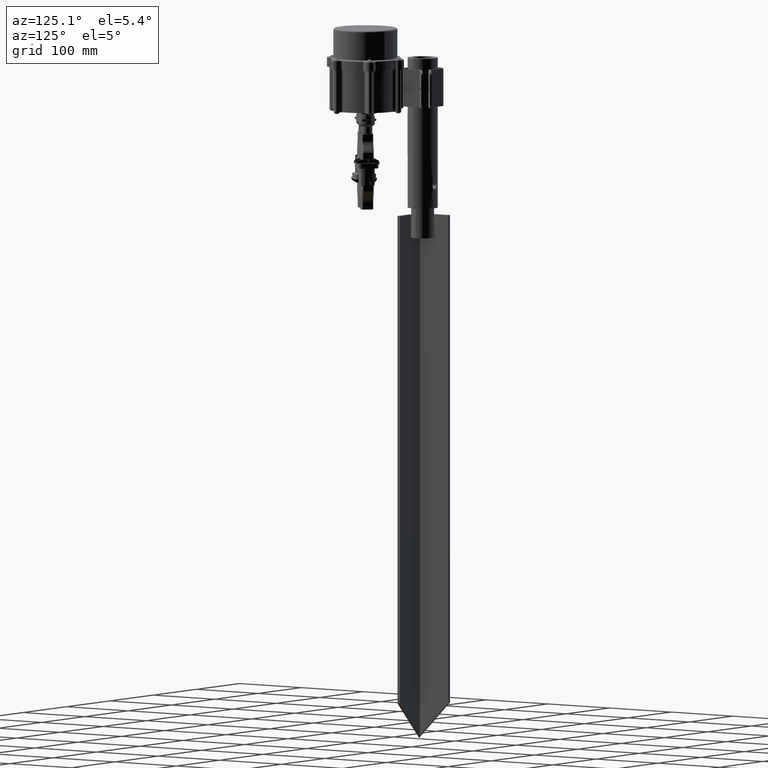
[diagram: clean part render]
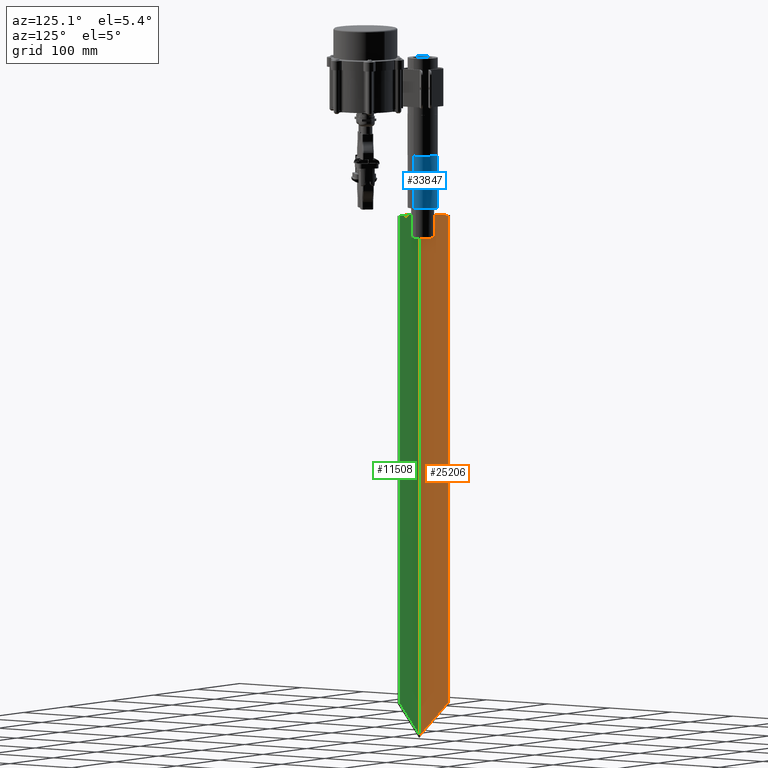
[diagram: same view with three faces highlighted in distinct colors, each labeled with its STEP entity id]
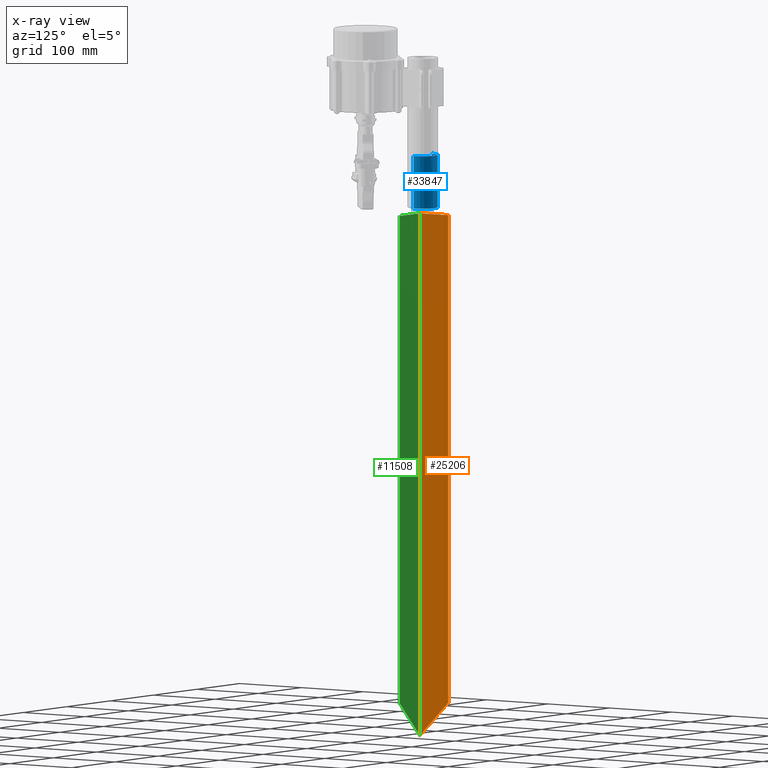
[diagram: x-ray of the same camera — body ghosted, the three highlighted faces saturated]
A machine part, auxiliary view with three faces highlighted in distinct colors.
The next image is the same camera in x-ray (body ghosted, the three faces saturated) — at least one of them is partly hidden behind the body in this view.
Their STEP definitions:

[orange] entity #25206 — the highlighted planar face has unit normal (-1, 0, 0).
#753 = VERTEX_POINT ( 'NONE', #4756 ) ;
#783 = PLANE ( 'NONE',  #7529 ) ;
#989 = VERTEX_POINT ( 'NONE', #11739 ) ;
#1484 = LINE ( 'NONE', #34932, #25727 ) ;
#2801 = DIRECTION ( 'NONE',  ( 0.0000000000000000000, 1.000000000000000000, 0.0000000000000000000 ) ) ;
#3592 = LINE ( 'NONE', #24434, #10466 ) ;
#3832 = DIRECTION ( 'NONE',  ( -1.000000000000000000, 0.0000000000000000000, 0.0000000000000000000 ) ) ;
#4756 = CARTESIAN_POINT ( 'NONE',  ( 4.000000000000000000, 4.000000000000000000, 4.000000000000003600 ) ) ;
#5561 = CARTESIAN_POINT ( 'NONE',  ( 4.000000000000000000, 50.00000000000000000, 700.0000000000000000 ) ) ;
#6194 = CARTESIAN_POINT ( 'NONE',  ( 4.000000000000000000, 50.00000000000000700, 50.00000000000000000 ) ) ;
#6431 = VECTOR ( 'NONE', #32555, 1000.000000000000100 ) ;
#7230 = ORIENTED_EDGE ( 'NONE', *, *, #19182, .T. ) ;
#7529 = AXIS2_PLACEMENT_3D ( 'NONE', #32854, #3832, #24290 ) ;
#7756 = VERTEX_POINT ( 'NONE', #6194 ) ;
#9371 = VERTEX_POINT ( 'NONE', #17999 ) ;
#10466 = VECTOR ( 'NONE', #27382, 1000.000000000000000 ) ;
#11584 = ORIENTED_EDGE ( 'NONE', *, *, #33726, .F. ) ;
#11739 = CARTESIAN_POINT ( 'NONE',  ( 4.000000000000000000, 4.000000000000000000, 700.0000000000000000 ) ) ;
#12264 = FACE_OUTER_BOUND ( 'NONE', #14537, .T. ) ;
#13385 = ORIENTED_EDGE ( 'NONE', *, *, #25239, .T. ) ;
#14537 = EDGE_LOOP ( 'NONE', ( #13385, #7230, #11584, #25789 ) ) ;
#15024 = CARTESIAN_POINT ( 'NONE',  ( 4.000000000000000000, 351.9999999999999400, 352.0000000000000600 ) ) ;
#17999 = CARTESIAN_POINT ( 'NONE',  ( 4.000000000000000000, 50.00000000000000000, 700.0000000000000000 ) ) ;
#19182 = EDGE_CURVE ( 'NONE', #753, #7756, #27017, .T. ) ;
#22542 = EDGE_CURVE ( 'NONE', #989, #9371, #1484, .T. ) ;
#23103 = DIRECTION ( 'NONE',  ( -0.0000000000000000000, -0.0000000000000000000, -1.000000000000000000 ) ) ;
#23632 = VECTOR ( 'NONE', #23103, 1000.000000000000000 ) ;
#24290 = DIRECTION ( 'NONE',  ( 0.0000000000000000000, 0.0000000000000000000, 1.000000000000000000 ) ) ;
#24434 = CARTESIAN_POINT ( 'NONE',  ( 4.000000000000000000, 4.000000000000000000, 700.0000000000000000 ) ) ;
#25206 = ADVANCED_FACE ( 'NONE', ( #12264 ), #783, .F. ) ;
#25239 = EDGE_CURVE ( 'NONE', #989, #753, #3592, .T. ) ;
#25727 = VECTOR ( 'NONE', #2801, 1000.000000000000000 ) ;
#25789 = ORIENTED_EDGE ( 'NONE', *, *, #22542, .F. ) ;
#27017 = LINE ( 'NONE', #15024, #6431 ) ;
#27382 = DIRECTION ( 'NONE',  ( -0.0000000000000000000, -0.0000000000000000000, -1.000000000000000000 ) ) ;
#32555 = DIRECTION ( 'NONE',  ( 0.0000000000000000000, 0.7071067811865474600, 0.7071067811865474600 ) ) ;
#32854 = CARTESIAN_POINT ( 'NONE',  ( 4.000000000000000000, 4.000000000000000000, 700.0000000000000000 ) ) ;
#33726 = EDGE_CURVE ( 'NONE', #9371, #7756, #37370, .T. ) ;
#34932 = CARTESIAN_POINT ( 'NONE',  ( 4.000000000000000000, 4.000000000000000000, 700.0000000000000000 ) ) ;
#37370 = LINE ( 'NONE', #5561, #23632 ) ;

[blue] entity #33847 — the highlighted cylindrical surface (edge-blend (fillet) strip) has radius 20 mm, axis along (-0, 0, -1).
#247 = EDGE_CURVE ( 'NONE', #3947, #33501, #14922, .T. ) ;
#317 = DIRECTION ( 'NONE',  ( -0.0000000000000000000, -0.0000000000000000000, -1.000000000000000000 ) ) ;
#685 = EDGE_CURVE ( 'NONE', #18343, #20521, #20625, .T. ) ;
#857 = CARTESIAN_POINT ( 'NONE',  ( -2.562249070927306200, 19.83652140974255900, 33.33917613590236300 ) ) ;
#984 = CARTESIAN_POINT ( 'NONE',  ( -3.985370952293800300, 19.59919409296579600, 28.64616712573360900 ) ) ;
#1120 = CARTESIAN_POINT ( 'NONE',  ( 4.188292898292406800E-015, 20.00000000000000000, 25.79999999999999700 ) ) ;
#1381 = CARTESIAN_POINT ( 'NONE',  ( 1.861490608868710400, 19.91479825350306900, 26.22511422665705500 ) ) ;
#1523 = CARTESIAN_POINT ( 'NONE',  ( 4.173073512967136800, 19.55986808386858700, 30.54844857985792900 ) ) ;
#1653 = CARTESIAN_POINT ( 'NONE',  ( 0.5528406535147854000, 19.99419679058095800, 34.17261522619427400 ) ) ;
#1655 = FACE_BOUND ( 'NONE', #26902, .T. ) ;
#2401 = CARTESIAN_POINT ( 'NONE',  ( -20.00000000000000000, 0.0000000000000000000, 70.00000000000000000 ) ) ;
#3463 = VERTEX_POINT ( 'NONE', #4769 ) ;
#3776 = CARTESIAN_POINT ( 'NONE',  ( -3.163717384922481100, 19.74915237648186300, 32.77587885422021000 ) ) ;
#3911 = CARTESIAN_POINT ( 'NONE',  ( -3.642939369713123800, 19.66603119724990400, 27.89201163190803400 ) ) ;
#3947 = VERTEX_POINT ( 'NONE', #27021 ) ;
#4213 = DIRECTION ( 'NONE',  ( 0.0000000000000000000, 0.0000000000000000000, 1.000000000000000000 ) ) ;
#4237 = CARTESIAN_POINT ( 'NONE',  ( 4.188292898292406800E-015, 20.00000000000000000, 25.79999999999999700 ) ) ;
#4240 = EDGE_CURVE ( 'NONE', #3463, #35745, #12003, .T. ) ;
#4327 = CARTESIAN_POINT ( 'NONE',  ( 2.563687760922375600, 19.83634061902229500, 26.66188087817691600 ) ) ;
#4448 = CARTESIAN_POINT ( 'NONE',  ( 3.984971638402676800, 19.59927255651121000, 31.35475609599886600 ) ) ;
#4568 = CARTESIAN_POINT ( 'NONE',  ( 9.308365541700179300E-016, 20.00000000000000000, 34.20000000000000300 ) ) ;
#4610 = CARTESIAN_POINT ( 'NONE',  ( 9.308365541700179300E-016, 20.00000000000000000, 34.20000000000000300 ) ) ;
#4769 = CARTESIAN_POINT ( 'NONE',  ( 20.00000000000000000, 2.449293598294706500E-015, 70.00000000000000000 ) ) ;
#6737 = CARTESIAN_POINT ( 'NONE',  ( -3.644306406445800800, 19.66579103796114200, 32.10600225674826200 ) ) ;
#6854 = CARTESIAN_POINT ( 'NONE',  ( -3.164613277795753600, 19.74902888785459600, 27.22487325469942800 ) ) ;
#7273 = CARTESIAN_POINT ( 'NONE',  ( 3.161920558549819100, 19.74944587354189100, 27.22201585688233300 ) ) ;
#7318 = EDGE_LOOP ( 'NONE', ( #26158, #32472, #33252, #14050 ) ) ;
#7398 = CARTESIAN_POINT ( 'NONE',  ( 3.645917826818177300, 19.66548540220053500, 32.10306378507974800 ) ) ;
#7597 = AXIS2_PLACEMENT_3D ( 'NONE', #21754, #4213, #24671 ) ;
#7605 = CYLINDRICAL_SURFACE ( 'NONE', #18561, 20.00000000000000000 ) ;
#7609 = ORIENTED_EDGE ( 'NONE', *, *, #25757, .T. ) ;
#9530 = CARTESIAN_POINT ( 'NONE',  ( -0.5518720823967746500, 19.99419648656537900, 34.17260632677036400 ) ) ;
#9652 = CARTESIAN_POINT ( 'NONE',  ( -3.983916382603969200, 19.59948544255731300, 31.35763819390512800 ) ) ;
#9798 = CARTESIAN_POINT ( 'NONE',  ( -2.563152241000632400, 19.83639465825728400, 26.66159512432502500 ) ) ;
#10207 = CARTESIAN_POINT ( 'NONE',  ( 3.642841742020647400, 19.66605026226151100, 27.89181917407363900 ) ) ;
#10266 = ORIENTED_EDGE ( 'NONE', *, *, #685, .T. ) ;
#10335 = CARTESIAN_POINT ( 'NONE',  ( 3.164551635925969600, 19.74901596392046000, 32.77489925709987500 ) ) ;
#12003 = CIRCLE ( 'NONE', #13569, 20.00000000000000000 ) ;
#12323 = CARTESIAN_POINT ( 'NONE',  ( -0.2783380511143904700, 19.99999999999999600, 34.20000000000000300 ) ) ;
#12453 = CARTESIAN_POINT ( 'NONE',  ( 9.308365541700179300E-016, 20.00000000000000000, 34.20000000000000300 ) ) ;
#12531 = LINE ( 'NONE', #17640, #20351 ) ;
#12584 = CARTESIAN_POINT ( 'NONE',  ( -4.173073762568107800, 19.55986981503911100, 30.54951977811594000 ) ) ;
#12705 = CARTESIAN_POINT ( 'NONE',  ( -1.862887576433846200, 19.91468012257299600, 26.22572578509388200 ) ) ;
#13012 = CARTESIAN_POINT ( 'NONE',  ( 4.188292898292406800E-015, 20.00000000000000000, 25.79999999999999700 ) ) ;
#13139 = CARTESIAN_POINT ( 'NONE',  ( 3.984101755403648900, 19.59945418065239100, 28.64237943728150200 ) ) ;
#13257 = CARTESIAN_POINT ( 'NONE',  ( 2.567297225680592400, 19.83588918349391200, 33.33548442241741600 ) ) ;
#13569 = AXIS2_PLACEMENT_3D ( 'NONE', #31108, #13595, #34066 ) ;
#13595 = DIRECTION ( 'NONE',  ( 0.0000000000000000000, 0.0000000000000000000, 1.000000000000000000 ) ) ;
#14050 = ORIENTED_EDGE ( 'NONE', *, *, #25048, .F. ) ;
#14882 = CARTESIAN_POINT ( 'NONE',  ( 0.0000000000000000000, 0.0000000000000000000, 200.0000000000000000 ) ) ;
#14922 = CIRCLE ( 'NONE', #7597, 20.00000000000000000 ) ;
#15161 = B_SPLINE_CURVE_WITH_KNOTS ( 'NONE', 3,
 ( #13012, #33468, #15952, #36468, #18867, #1381, #21849, #4327, #24773, #7273, #27738, #10207, #30661, #13139, #33610, #16080, #36580, #18995, #1523, #21965, #4448, #24913, #7398, #27862, #10335, #30791, #13257, #33736, #16219, #36705, #19122, #1653, #22096, #4568 ),
 .UNSPECIFIED., .F., .F.,
 ( 4, 2, 2, 2, 2, 2, 2, 2, 2, 2, 2, 2, 2, 2, 2, 2, 4 ),
 ( 0.01316783473262432700, 0.01399060964804361500, 0.01481338456346290200, 0.01563615947888218800, 0.01645893439430147500, 0.01728170930972076200, 0.01810448422514005000, 0.01892725914055933700, 0.01975003405597862400, 0.02057280897139791100, 0.02139558388681719900, 0.02221835880223648300, 0.02304113371765576700, 0.02386390863307505400, 0.02468668354849434100, 0.02550945846391362800, 0.02633223337933291600 ),
 .UNSPECIFIED. ) ;
#15428 = CARTESIAN_POINT ( 'NONE',  ( -1.356976831066771100, 19.95554137041529000, 33.98426340179674600 ) ) ;
#15549 = CARTESIAN_POINT ( 'NONE',  ( -4.200108778611418200, 19.55400435359176500, 29.72687047538479300 ) ) ;
#15693 = CARTESIAN_POINT ( 'NONE',  ( -1.093420486391702100, 19.97191712390264900, 25.93548719834731700 ) ) ;
#15952 = CARTESIAN_POINT ( 'NONE',  ( 0.5478180382495974100, 19.99435200588668600, 25.82664120330885300 ) ) ;
#16080 = CARTESIAN_POINT ( 'NONE',  ( 4.172175893427454900, 19.56006034836714100, 29.44504325435212500 ) ) ;
#16219 = CARTESIAN_POINT ( 'NONE',  ( 1.866512879255001400, 19.91432480769762100, 33.77239515835257300 ) ) ;
#16288 = FACE_OUTER_BOUND ( 'NONE', #7318, .T. ) ;
#17640 = CARTESIAN_POINT ( 'NONE',  ( 20.00000000000000000, 2.449293598294706500E-015, 200.0000000000000000 ) ) ;
#18329 = CARTESIAN_POINT ( 'NONE',  ( -2.106248871028048300, 19.89010853751019100, 33.64402706649399000 ) ) ;
#18343 = VERTEX_POINT ( 'NONE', #4610 ) ;
#18467 = CARTESIAN_POINT ( 'NONE',  ( -4.064964631846025100, 19.58262205852378900, 28.90836496294286600 ) ) ;
#18561 = AXIS2_PLACEMENT_3D ( 'NONE', #14882, #317, #32393 ) ;
#18585 = CARTESIAN_POINT ( 'NONE',  ( -0.2745390965992292000, 20.00000000000000400, 25.79999999999999700 ) ) ;
#18867 = CARTESIAN_POINT ( 'NONE',  ( 1.355840385163133500, 19.95560155982765200, 26.01545401097515500 ) ) ;
#18995 = CARTESIAN_POINT ( 'NONE',  ( 4.200128849857164500, 19.55400004249999000, 30.27528077194391500 ) ) ;
#19122 = CARTESIAN_POINT ( 'NONE',  ( 1.094738525459737300, 19.97185734100689200, 34.06422171822861600 ) ) ;
#20351 = VECTOR ( 'NONE', #35193, 1000.000000000000000 ) ;
#20521 = VERTEX_POINT ( 'NONE', #4237 ) ;
#20625 = B_SPLINE_CURVE_WITH_KNOTS ( 'NONE', 3,
 ( #12453, #12323, #9530, #32928, #15428, #35922, #18329, #857, #21318, #3776, #24238, #6737, #27207, #9652, #30131, #12584, #33064, #15549, #36045, #18467, #984, #21445, #3911, #24377, #6854, #27332, #9798, #30258, #12705, #33200, #15693, #36165, #18585, #1120 ),
 .UNSPECIFIED., .F., .F.,
 ( 4, 2, 2, 2, 2, 2, 2, 2, 2, 2, 2, 2, 2, 2, 2, 2, 4 ),
 ( 9.042208671597768500E-019, 0.0008229896707890212200, 0.001645979341578041600, 0.002468969012367061900, 0.003291958683156082300, 0.004114948353945102600, 0.004937938024734123000, 0.005760927695523143300, 0.006583917366312163700, 0.007406907037101184000, 0.008229896707890205200, 0.009052886378679224700, 0.009875876049468245900, 0.01069886572025726700, 0.01152185539104628700, 0.01234484506183530600, 0.01316783473262432700 ),
 .UNSPECIFIED. ) ;
#21318 = CARTESIAN_POINT ( 'NONE',  ( -2.777525012803538500, 19.80715734486932800, 33.16227226977982000 ) ) ;
#21445 = CARTESIAN_POINT ( 'NONE',  ( -3.774140768395597900, 19.64096362660108500, 28.13669472732837900 ) ) ;
#21754 = CARTESIAN_POINT ( 'NONE',  ( 0.0000000000000000000, 0.0000000000000000000, 0.0000000000000000000 ) ) ;
#21849 = CARTESIAN_POINT ( 'NONE',  ( 2.106816570671456600, 19.89005349482302200, 26.35625767314313700 ) ) ;
#21965 = CARTESIAN_POINT ( 'NONE',  ( 4.066200111219911800, 19.58236448078944400, 31.08690158013098100 ) ) ;
#22096 = CARTESIAN_POINT ( 'NONE',  ( 0.2782654200800048200, 20.00000000000000000, 34.20000000000001700 ) ) ;
#22845 = VECTOR ( 'NONE', #22863, 1000.000000000000000 ) ;
#22863 = DIRECTION ( 'NONE',  ( -0.0000000000000000000, -0.0000000000000000000, -1.000000000000000000 ) ) ;
#24238 = CARTESIAN_POINT ( 'NONE',  ( -3.337282877563797700, 19.72021423128903100, 32.56490890376445400 ) ) ;
#24377 = CARTESIAN_POINT ( 'NONE',  ( -3.339193164920370100, 19.71987777117194100, 27.43788930395934100 ) ) ;
#24671 = DIRECTION ( 'NONE',  ( 1.000000000000000000, 0.0000000000000000000, 0.0000000000000000000 ) ) ;
#24773 = CARTESIAN_POINT ( 'NONE',  ( 2.774575039624480600, 19.80757651203280300, 26.83508754189219300 ) ) ;
#24913 = CARTESIAN_POINT ( 'NONE',  ( 3.774719056171039500, 19.64084977159252800, 31.86195034453097500 ) ) ;
#25048 = EDGE_CURVE ( 'NONE', #35745, #33501, #30618, .T. ) ;
#25757 = EDGE_CURVE ( 'NONE', #20521, #18343, #15161, .T. ) ;
#26158 = ORIENTED_EDGE ( 'NONE', *, *, #4240, .F. ) ;
#26902 = EDGE_LOOP ( 'NONE', ( #10266, #7609 ) ) ;
#27021 = CARTESIAN_POINT ( 'NONE',  ( 20.00000000000000000, 2.449293598294706500E-015, 0.0000000000000000000 ) ) ;
#27207 = CARTESIAN_POINT ( 'NONE',  ( -3.774252074308327700, 19.64093787567629300, 31.86273790123826500 ) ) ;
#27332 = CARTESIAN_POINT ( 'NONE',  ( -2.774427515353557800, 19.80761144543596000, 26.83477368699600900 ) ) ;
#27738 = CARTESIAN_POINT ( 'NONE',  ( 3.338848791572818900, 19.71993705928639100, 27.43742100624696400 ) ) ;
#27862 = CARTESIAN_POINT ( 'NONE',  ( 3.340632898342828400, 19.71964007639547800, 32.56042299679842200 ) ) ;
#30131 = CARTESIAN_POINT ( 'NONE',  ( -4.064955966322117800, 19.58262456365271500, 31.09208498123413000 ) ) ;
#30258 = CARTESIAN_POINT ( 'NONE',  ( -2.108888380588233700, 19.88981880880026100, 26.35757137026723000 ) ) ;
#30618 = LINE ( 'NONE', #34529, #22845 ) ;
#30661 = CARTESIAN_POINT ( 'NONE',  ( 3.772138045308474300, 19.64135040021533400, 28.13260208930639200 ) ) ;
#30791 = CARTESIAN_POINT ( 'NONE',  ( 2.778913330987657000, 19.80695987016901700, 33.16102730806841200 ) ) ;
#31108 = CARTESIAN_POINT ( 'NONE',  ( 0.0000000000000000000, 0.0000000000000000000, 70.00000000000000000 ) ) ;
#32393 = DIRECTION ( 'NONE',  ( -1.000000000000000000, 0.0000000000000000000, 0.0000000000000000000 ) ) ;
#32472 = ORIENTED_EDGE ( 'NONE', *, *, #34463, .T. ) ;
#32928 = CARTESIAN_POINT ( 'NONE',  ( -1.089771314802165500, 19.97210190290812900, 34.06541570260252900 ) ) ;
#33064 = CARTESIAN_POINT ( 'NONE',  ( -4.199890559246247400, 19.55405122481805300, 30.27646478933032300 ) ) ;
#33200 = CARTESIAN_POINT ( 'NONE',  ( -1.355286002329636900, 19.95565168965235600, 26.01519187116542000 ) ) ;
#33252 = ORIENTED_EDGE ( 'NONE', *, *, #247, .T. ) ;
#33468 = CARTESIAN_POINT ( 'NONE',  ( 0.2744674568845620300, 19.99999999999999600, 25.80000000000000100 ) ) ;
#33501 = VERTEX_POINT ( 'NONE', #36302 ) ;
#33610 = CARTESIAN_POINT ( 'NONE',  ( 4.064755719125386700, 19.58266512661898400, 28.90785091719366300 ) ) ;
#33736 = CARTESIAN_POINT ( 'NONE',  ( 2.107803092557883200, 19.88996432545421900, 33.64330035821643600 ) ) ;
#33847 = ADVANCED_FACE ( 'NONE', ( #1655, #16288 ), #7605, .T. ) ;
#34066 = DIRECTION ( 'NONE',  ( 1.000000000000000000, 0.0000000000000000000, 0.0000000000000000000 ) ) ;
#34463 = EDGE_CURVE ( 'NONE', #3463, #3947, #12531, .T. ) ;
#34529 = CARTESIAN_POINT ( 'NONE',  ( -20.00000000000000000, 0.0000000000000000000, 200.0000000000000000 ) ) ;
#35193 = DIRECTION ( 'NONE',  ( -0.0000000000000000000, -0.0000000000000000000, -1.000000000000000000 ) ) ;
#35745 = VERTEX_POINT ( 'NONE', #2401 ) ;
#35922 = CARTESIAN_POINT ( 'NONE',  ( -1.865290054462114300, 19.91445983498254100, 33.77311992754982800 ) ) ;
#36045 = CARTESIAN_POINT ( 'NONE',  ( -4.172591554658764000, 19.55997198012133300, 29.44765569589234000 ) ) ;
#36165 = CARTESIAN_POINT ( 'NONE',  ( -0.5533532157932982100, 19.99417020490393800, 25.82751478211955000 ) ) ;
#36302 = CARTESIAN_POINT ( 'NONE',  ( -20.00000000000000000, 0.0000000000000000000, 0.0000000000000000000 ) ) ;
#36468 = CARTESIAN_POINT ( 'NONE',  ( 1.092214860408399900, 19.97201250342687800, 25.93501599662999300 ) ) ;
#36580 = CARTESIAN_POINT ( 'NONE',  ( 4.199870236491767300, 19.55405558993126600, 29.72080140502662000 ) ) ;
#36705 = CARTESIAN_POINT ( 'NONE',  ( 1.361399914003745400, 19.95521969683762700, 33.98264056039925400 ) ) ;

[green] entity #11508 — the highlighted planar face has unit normal (0, -1, 0).
#109 = EDGE_LOOP ( 'NONE', ( #1446, #2667, #16579, #14820 ) ) ;
#753 = VERTEX_POINT ( 'NONE', #4756 ) ;
#989 = VERTEX_POINT ( 'NONE', #11739 ) ;
#1018 = VERTEX_POINT ( 'NONE', #11846 ) ;
#1446 = ORIENTED_EDGE ( 'NONE', *, *, #4346, .F. ) ;
#2452 = DIRECTION ( 'NONE',  ( 0.7071067811865474600, 0.0000000000000000000, 0.7071067811865474600 ) ) ;
#2633 = PLANE ( 'NONE',  #27890 ) ;
#2667 = ORIENTED_EDGE ( 'NONE', *, *, #25239, .F. ) ;
#3592 = LINE ( 'NONE', #24434, #10466 ) ;
#4346 = EDGE_CURVE ( 'NONE', #753, #33566, #23021, .T. ) ;
#4756 = CARTESIAN_POINT ( 'NONE',  ( 4.000000000000000000, 4.000000000000000000, 4.000000000000003600 ) ) ;
#5201 = DIRECTION ( 'NONE',  ( -1.000000000000000000, -0.0000000000000000000, -0.0000000000000000000 ) ) ;
#8153 = CARTESIAN_POINT ( 'NONE',  ( 4.000000000000000000, 4.000000000000000000, 700.0000000000000000 ) ) ;
#8514 = CARTESIAN_POINT ( 'NONE',  ( 4.000000000000000000, 4.000000000000000000, 700.0000000000000000 ) ) ;
#8879 = VECTOR ( 'NONE', #5201, 1000.000000000000000 ) ;
#9794 = LINE ( 'NONE', #8153, #8879 ) ;
#9985 = CARTESIAN_POINT ( 'NONE',  ( 50.00000000000000000, 4.000000000000000000, 700.0000000000000000 ) ) ;
#10313 = CARTESIAN_POINT ( 'NONE',  ( 50.00000000000000700, 4.000000000000000000, 50.00000000000000000 ) ) ;
#10466 = VECTOR ( 'NONE', #27382, 1000.000000000000000 ) ;
#11143 = CARTESIAN_POINT ( 'NONE',  ( 352.0000000000000000, 4.000000000000000000, 352.0000000000000000 ) ) ;
#11508 = ADVANCED_FACE ( 'NONE', ( #11926 ), #2633, .F. ) ;
#11739 = CARTESIAN_POINT ( 'NONE',  ( 4.000000000000000000, 4.000000000000000000, 700.0000000000000000 ) ) ;
#11846 = CARTESIAN_POINT ( 'NONE',  ( 50.00000000000000000, 4.000000000000000000, 700.0000000000000000 ) ) ;
#11926 = FACE_OUTER_BOUND ( 'NONE', #109, .T. ) ;
#14390 = DIRECTION ( 'NONE',  ( 0.0000000000000000000, -1.000000000000000000, 0.0000000000000000000 ) ) ;
#14820 = ORIENTED_EDGE ( 'NONE', *, *, #28313, .T. ) ;
#15214 = VECTOR ( 'NONE', #2452, 1000.000000000000100 ) ;
#16579 = ORIENTED_EDGE ( 'NONE', *, *, #21379, .F. ) ;
#18485 = VECTOR ( 'NONE', #36371, 1000.000000000000000 ) ;
#21379 = EDGE_CURVE ( 'NONE', #1018, #989, #9794, .T. ) ;
#23021 = LINE ( 'NONE', #11143, #15214 ) ;
#24434 = CARTESIAN_POINT ( 'NONE',  ( 4.000000000000000000, 4.000000000000000000, 700.0000000000000000 ) ) ;
#25239 = EDGE_CURVE ( 'NONE', #989, #753, #3592, .T. ) ;
#27382 = DIRECTION ( 'NONE',  ( -0.0000000000000000000, -0.0000000000000000000, -1.000000000000000000 ) ) ;
#27890 = AXIS2_PLACEMENT_3D ( 'NONE', #8514, #14390, #34872 ) ;
#28313 = EDGE_CURVE ( 'NONE', #1018, #33566, #34108, .T. ) ;
#33566 = VERTEX_POINT ( 'NONE', #10313 ) ;
#34108 = LINE ( 'NONE', #9985, #18485 ) ;
#34872 = DIRECTION ( 'NONE',  ( 0.0000000000000000000, -0.0000000000000000000, -1.000000000000000000 ) ) ;
#36371 = DIRECTION ( 'NONE',  ( -0.0000000000000000000, -0.0000000000000000000, -1.000000000000000000 ) ) ;